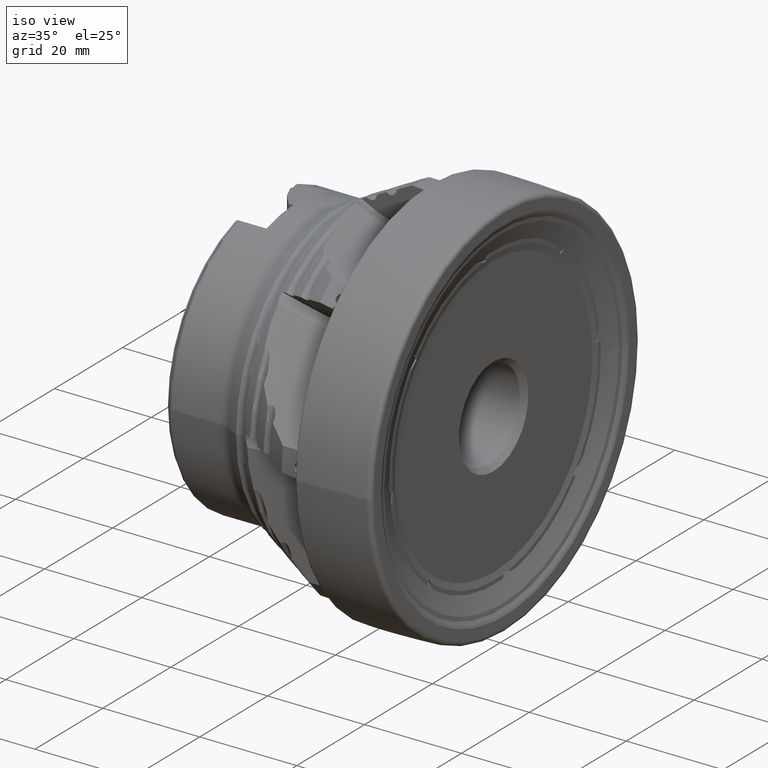
[diagram: clean part render]
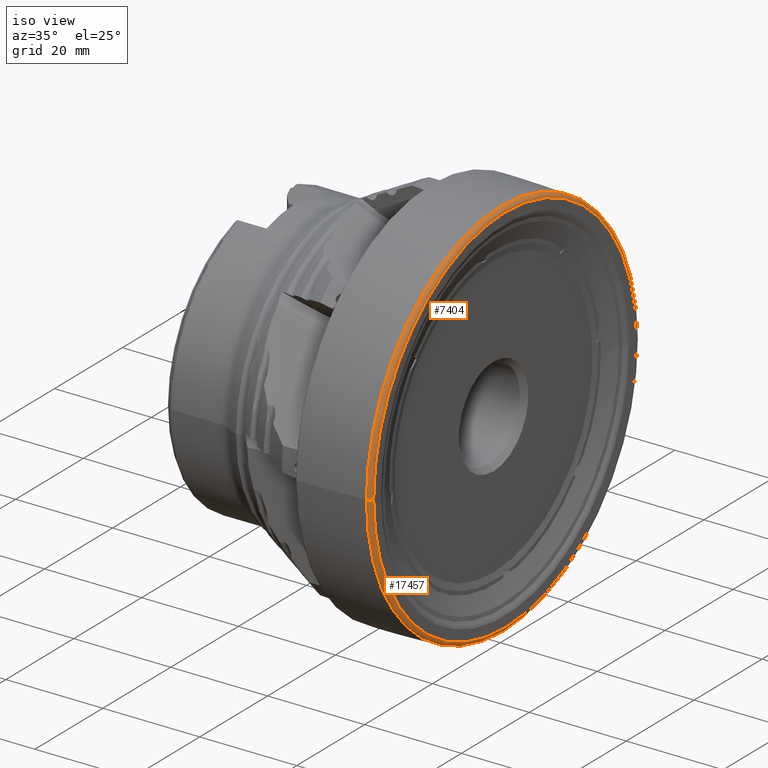
[diagram: same view with one multi-face feature highlighted, each face labeled with its STEP entity id]
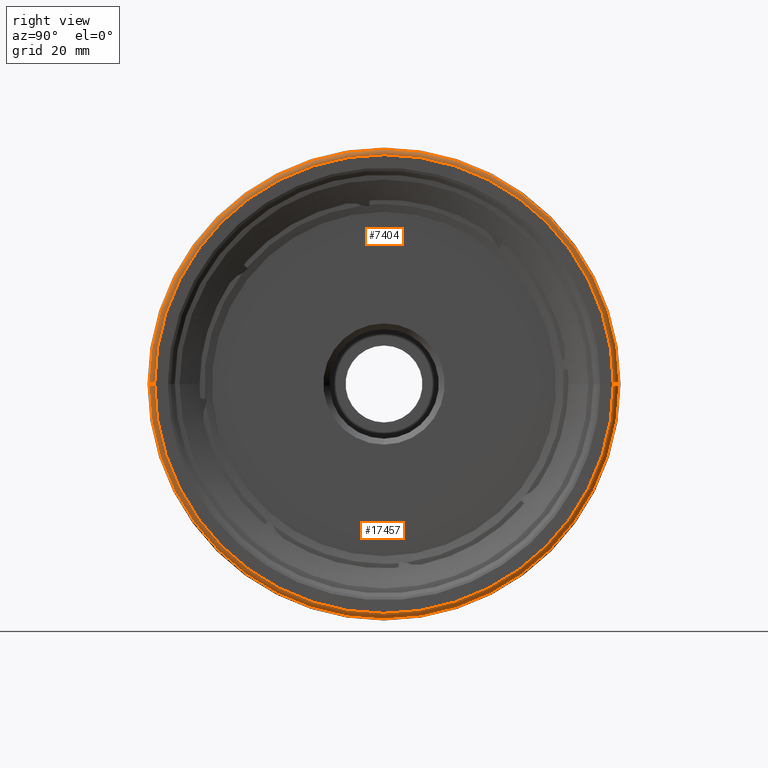
[diagram: same view with one multi-face feature highlighted, each face labeled with its STEP entity id]
A machine part, iso view. The highlighted faces form ONE feature: a constant-radius fillet chain: 2 tangent blend faces with common blend radius 0.8996 mm. The faces share edges in the B-rep.
A second angle (right view) of the same feature is appended — it is thin or edge-on in the first view.
Their STEP definitions:
[1] entity #17457 (Torus):
#240 = CIRCLE ( 'NONE', #8077, 38.75645124981785727 ) ;
#269 = CARTESIAN_POINT ( 'NONE',  ( 1.023109770109559280, 38.75645124981785727, 0.0000000000000000000 ) ) ;
#1629 = VERTEX_POINT ( 'NONE', #13919 ) ;
#2357 = TOROIDAL_SURFACE ( 'NONE', #7025, 38.76005890787069319, 0.8996004590690832581 ) ;
#2827 = CARTESIAN_POINT ( 'NONE',  ( 0.1630070387751061389, -1.462491196852808857E-15, 0.0000000000000000000 ) ) ;
#2897 = CIRCLE ( 'NONE', #3171, 39.65879217578405047 ) ;
#2919 = DIRECTION ( 'NONE',  ( 1.000000000000000000, 1.219777027685245115E-16, -0.0000000000000000000 ) ) ;
#2969 = DIRECTION ( 'NONE',  ( -1.493796032628207952E-32, 1.224646799147353207E-16, 1.000000000000000000 ) ) ;
#3117 = ORIENTED_EDGE ( 'NONE', *, *, #13100, .F. ) ;
#3171 = AXIS2_PLACEMENT_3D ( 'NONE', #2827, #2919, #6669 ) ;
#3735 = CARTESIAN_POINT ( 'NONE',  ( 1.023109770109564165, -1.357577841539698180E-15, 0.0000000000000000000 ) ) ;
#3892 = DIRECTION ( 'NONE',  ( -0.0000000000000000000, 0.0000000000000000000, -1.000000000000000000 ) ) ;
#3988 = DIRECTION ( 'NONE',  ( -1.000000000000000000, 0.0000000000000000000, 0.0000000000000000000 ) ) ;
#4184 = CARTESIAN_POINT ( 'NONE',  ( 0.1630070387751013095, 39.65879217578405047, 4.861415762981181873E-15 ) ) ;
#4617 = CIRCLE ( 'NONE', #11323, 0.8996004590690832581 ) ;
#6209 = DIRECTION ( 'NONE',  ( 1.000000000000000000, 1.219777027685245115E-16, -0.0000000000000000000 ) ) ;
#6669 = DIRECTION ( 'NONE',  ( -1.216552346368856823E-16, 1.000000000000000000, 0.0000000000000000000 ) ) ;
#7025 = AXIS2_PLACEMENT_3D ( 'NONE', #7837, #10747, #11928 ) ;
#7663 = DIRECTION ( 'NONE',  ( -1.230889156539748782E-16, 1.000000000000000000, 0.0000000000000000000 ) ) ;
#7837 = CARTESIAN_POINT ( 'NONE',  ( 0.1235165449456201020, 0.0000000000000000000, 0.0000000000000000000 ) ) ;
#8077 = AXIS2_PLACEMENT_3D ( 'NONE', #3735, #6209, #7663 ) ;
#9049 = ORIENTED_EDGE ( 'NONE', *, *, #16351, .T. ) ;
#9652 = DIRECTION ( 'NONE',  ( 0.0000000000000000000, -1.000000000000000000, 1.224646799147355919E-16 ) ) ;
#9943 = EDGE_LOOP ( 'NONE', ( #15999, #9049, #14820, #3117 ) ) ;
#10320 = EDGE_CURVE ( 'NONE', #1629, #17300, #15618, .T. ) ;
#10747 = DIRECTION ( 'NONE',  ( 1.000000000000000000, 1.219777027685245115E-16, -0.0000000000000000000 ) ) ;
#11323 = AXIS2_PLACEMENT_3D ( 'NONE', #17744, #3892, #3988 ) ;
#11928 = DIRECTION ( 'NONE',  ( -1.219777027685245115E-16, 1.000000000000000000, 0.0000000000000000000 ) ) ;
#12142 = CARTESIAN_POINT ( 'NONE',  ( 1.023109770109568828, -38.75645124981785727, 4.746296396939987733E-15 ) ) ;
#12469 = VERTEX_POINT ( 'NONE', #4184 ) ;
#13100 = EDGE_CURVE ( 'NONE', #17300, #13475, #240, .T. ) ;
#13475 = VERTEX_POINT ( 'NONE', #269 ) ;
#13570 = AXIS2_PLACEMENT_3D ( 'NONE', #15461, #2969, #9652 ) ;
#13881 = FACE_OUTER_BOUND ( 'NONE', #9943, .T. ) ;
#13919 = CARTESIAN_POINT ( 'NONE',  ( 0.1630070387751109406, -39.65879217578405047, 0.0000000000000000000 ) ) ;
#14820 = ORIENTED_EDGE ( 'NONE', *, *, #15569, .T. ) ;
#15461 = CARTESIAN_POINT ( 'NONE',  ( 0.1235165449456248066, -38.76005890787069319, 4.746738207628670534E-15 ) ) ;
#15569 = EDGE_CURVE ( 'NONE', #12469, #13475, #4617, .T. ) ;
#15618 = CIRCLE ( 'NONE', #13570, 0.8996004590690818148 ) ;
#15999 = ORIENTED_EDGE ( 'NONE', *, *, #10320, .F. ) ;
#16351 = EDGE_CURVE ( 'NONE', #1629, #12469, #2897, .T. ) ;
#17300 = VERTEX_POINT ( 'NONE', #12142 ) ;
#17457 = ADVANCED_FACE ( 'NONE', ( #13881 ), #2357, .T. ) ;
#17744 = CARTESIAN_POINT ( 'NONE',  ( 0.1235165449456153836, 38.76005890787069319, 0.0000000000000000000 ) ) ;
[2] entity #7404 (Torus):
#269 = CARTESIAN_POINT ( 'NONE',  ( 1.023109770109559280, 38.75645124981785727, 0.0000000000000000000 ) ) ;
#1629 = VERTEX_POINT ( 'NONE', #13919 ) ;
#1684 = DIRECTION ( 'NONE',  ( 1.000000000000000000, 1.219777027685245115E-16, -0.0000000000000000000 ) ) ;
#1705 = CIRCLE ( 'NONE', #3709, 38.75645124981785727 ) ;
#1763 = DIRECTION ( 'NONE',  ( 1.000000000000000000, 1.219777027685245115E-16, -0.0000000000000000000 ) ) ;
#2314 = DIRECTION ( 'NONE',  ( 1.000000000000000000, 1.219777027685245115E-16, -0.0000000000000000000 ) ) ;
#2441 = ORIENTED_EDGE ( 'NONE', *, *, #15183, .F. ) ;
#2969 = DIRECTION ( 'NONE',  ( -1.493796032628207952E-32, 1.224646799147353207E-16, 1.000000000000000000 ) ) ;
#3563 = AXIS2_PLACEMENT_3D ( 'NONE', #14783, #2314, #14963 ) ;
#3709 = AXIS2_PLACEMENT_3D ( 'NONE', #11417, #1763, #7221 ) ;
#3892 = DIRECTION ( 'NONE',  ( -0.0000000000000000000, 0.0000000000000000000, -1.000000000000000000 ) ) ;
#3988 = DIRECTION ( 'NONE',  ( -1.000000000000000000, 0.0000000000000000000, 0.0000000000000000000 ) ) ;
#4184 = CARTESIAN_POINT ( 'NONE',  ( 0.1630070387751013095, 39.65879217578405047, 4.861415762981181873E-15 ) ) ;
#4617 = CIRCLE ( 'NONE', #11323, 0.8996004590690832581 ) ;
#4767 = EDGE_CURVE ( 'NONE', #12469, #1629, #7948, .T. ) ;
#4826 = ORIENTED_EDGE ( 'NONE', *, *, #15569, .F. ) ;
#5517 = AXIS2_PLACEMENT_3D ( 'NONE', #9707, #1684, #15599 ) ;
#7221 = DIRECTION ( 'NONE',  ( -1.230889156539748782E-16, 1.000000000000000000, 0.0000000000000000000 ) ) ;
#7404 = ADVANCED_FACE ( 'NONE', ( #9794 ), #15694, .T. ) ;
#7948 = CIRCLE ( 'NONE', #3563, 39.65879217578405047 ) ;
#9652 = DIRECTION ( 'NONE',  ( 0.0000000000000000000, -1.000000000000000000, 1.224646799147355919E-16 ) ) ;
#9707 = CARTESIAN_POINT ( 'NONE',  ( 0.1235165449456201020, 0.0000000000000000000, 0.0000000000000000000 ) ) ;
#9794 = FACE_OUTER_BOUND ( 'NONE', #17761, .T. ) ;
#10320 = EDGE_CURVE ( 'NONE', #1629, #17300, #15618, .T. ) ;
#11260 = ORIENTED_EDGE ( 'NONE', *, *, #4767, .T. ) ;
#11323 = AXIS2_PLACEMENT_3D ( 'NONE', #17744, #3892, #3988 ) ;
#11417 = CARTESIAN_POINT ( 'NONE',  ( 1.023109770109564165, -1.357577841539698180E-15, 0.0000000000000000000 ) ) ;
#12142 = CARTESIAN_POINT ( 'NONE',  ( 1.023109770109568828, -38.75645124981785727, 4.746296396939987733E-15 ) ) ;
#12469 = VERTEX_POINT ( 'NONE', #4184 ) ;
#13475 = VERTEX_POINT ( 'NONE', #269 ) ;
#13570 = AXIS2_PLACEMENT_3D ( 'NONE', #15461, #2969, #9652 ) ;
#13919 = CARTESIAN_POINT ( 'NONE',  ( 0.1630070387751109406, -39.65879217578405047, 0.0000000000000000000 ) ) ;
#14783 = CARTESIAN_POINT ( 'NONE',  ( 0.1630070387751061389, -1.462491196852808857E-15, 0.0000000000000000000 ) ) ;
#14911 = ORIENTED_EDGE ( 'NONE', *, *, #10320, .T. ) ;
#14963 = DIRECTION ( 'NONE',  ( -1.216552346368856823E-16, 1.000000000000000000, 0.0000000000000000000 ) ) ;
#15183 = EDGE_CURVE ( 'NONE', #13475, #17300, #1705, .T. ) ;
#15461 = CARTESIAN_POINT ( 'NONE',  ( 0.1235165449456248066, -38.76005890787069319, 4.746738207628670534E-15 ) ) ;
#15569 = EDGE_CURVE ( 'NONE', #12469, #13475, #4617, .T. ) ;
#15599 = DIRECTION ( 'NONE',  ( -1.219777027685245115E-16, 1.000000000000000000, 0.0000000000000000000 ) ) ;
#15618 = CIRCLE ( 'NONE', #13570, 0.8996004590690818148 ) ;
#15694 = TOROIDAL_SURFACE ( 'NONE', #5517, 38.76005890787069319, 0.8996004590690832581 ) ;
#17300 = VERTEX_POINT ( 'NONE', #12142 ) ;
#17744 = CARTESIAN_POINT ( 'NONE',  ( 0.1235165449456153836, 38.76005890787069319, 0.0000000000000000000 ) ) ;
#17761 = EDGE_LOOP ( 'NONE', ( #11260, #14911, #2441, #4826 ) ) ;